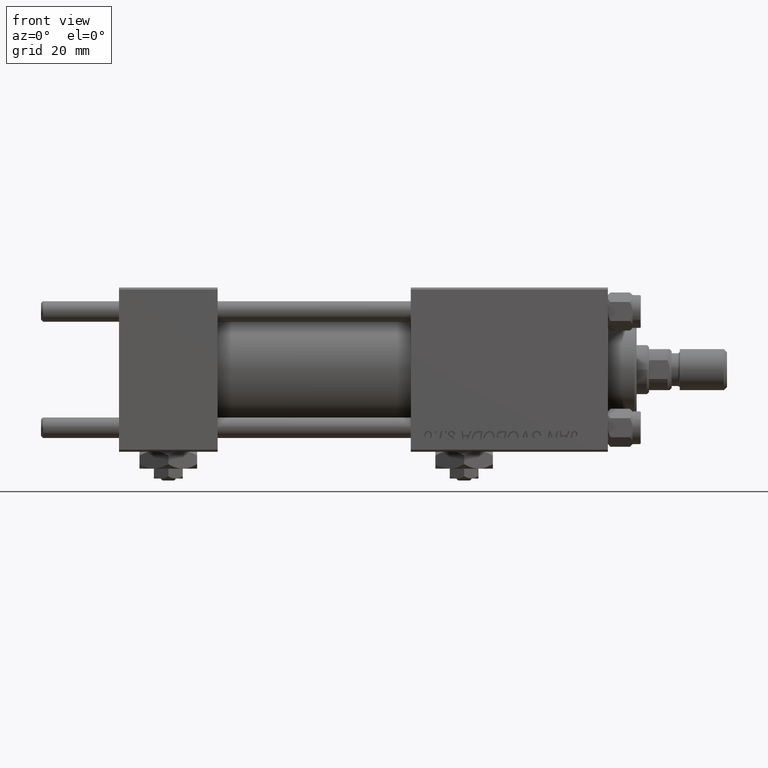
[diagram: clean part render]
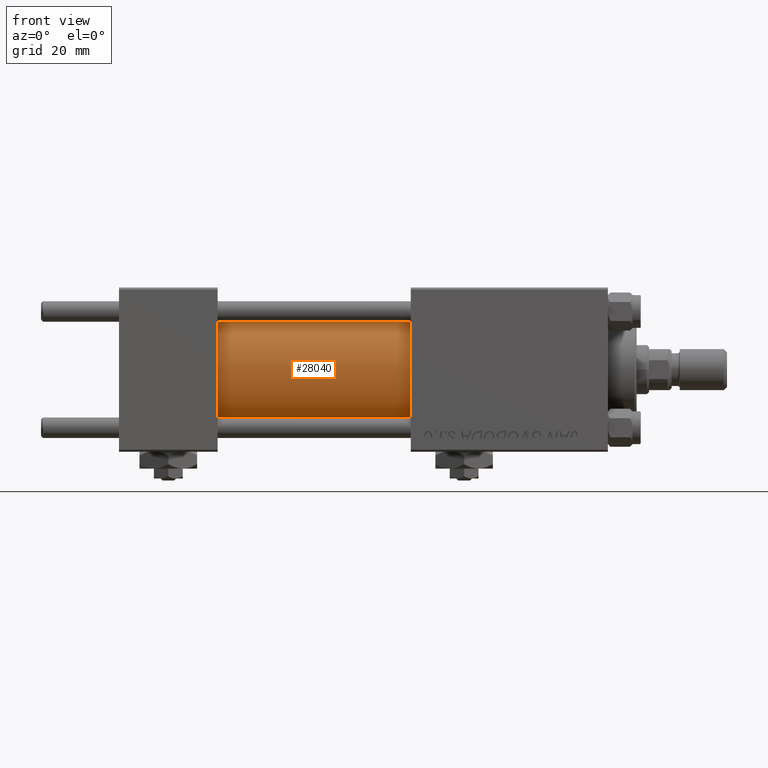
[diagram: same view with one face highlighted and labeled with its STEP entity id]
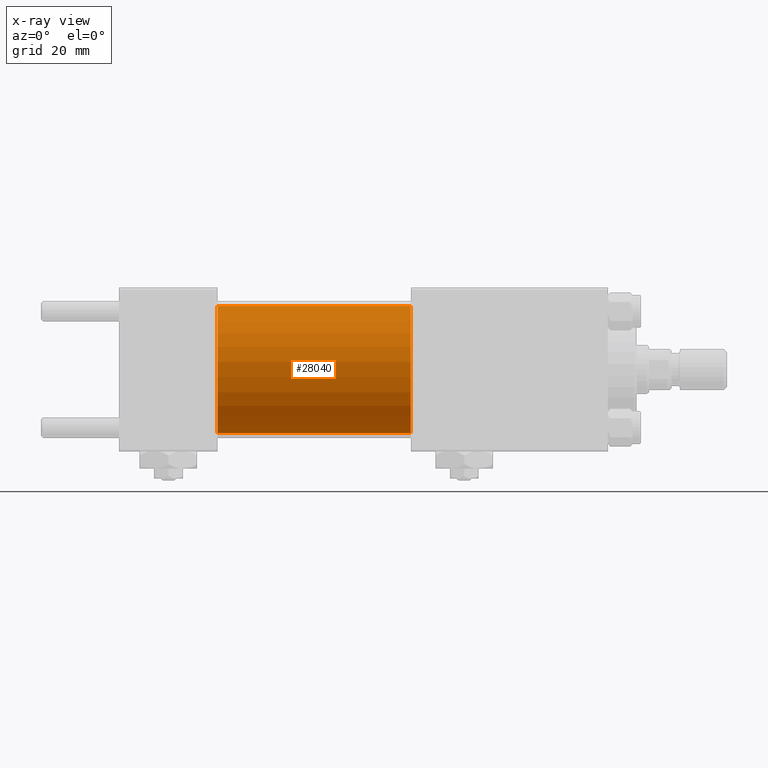
[diagram: x-ray of the same camera — body ghosted, the highlighted face saturated]
A machine part, front view. The second image highlights one B-rep face of the part: STEP entity #28040.
The next image is the same camera in x-ray: the body ghosted, the highlighted face saturated — about 0% of this face is hidden behind the body in this view.
In plain terms, the highlighted cylindrical surface (partial cylindrical patch) has radius 15.5 mm, axis along (-1, -0, -0).
Its self-contained STEP definition (entity closure, byte-faithful):
#3959 = VERTEX_POINT ( 'NONE', #33240 ) ;
#4667 = DIRECTION ( 'NONE',  ( 0.000000000000000000, 0.000000000000000000, -1.000000000000000000 ) ) ;
#7259 = CARTESIAN_POINT ( 'NONE',  ( 24.00000000000000000, 1.898202538678397557E-15, -15.50000000000000000 ) ) ;
#8919 = EDGE_LOOP ( 'NONE', ( #32512, #47701, #15351, #12631 ) ) ;
#9081 = EDGE_CURVE ( 'NONE', #3959, #51902, #46684, .T. ) ;
#9867 = DIRECTION ( 'NONE',  ( -1.000000000000000000, -0.000000000000000000, -0.000000000000000000 ) ) ;
#11284 = CARTESIAN_POINT ( 'NONE',  ( 71.00000000000001421, 0.000000000000000000, 0.000000000000000000 ) ) ;
#11408 = VERTEX_POINT ( 'NONE', #12252 ) ;
#12252 = CARTESIAN_POINT ( 'NONE',  ( 24.00000000000000000, 0.000000000000000000, 15.50000000000000000 ) ) ;
#12631 = ORIENTED_EDGE ( 'NONE', *, *, #51099, .T. ) ;
#14787 = VECTOR ( 'NONE', #9867, 1000.000000000000000 ) ;
#15351 = ORIENTED_EDGE ( 'NONE', *, *, #16118, .T. ) ;
#16056 = DIRECTION ( 'NONE',  ( 1.000000000000000000, 0.000000000000000000, 0.000000000000000000 ) ) ;
#16118 = EDGE_CURVE ( 'NONE', #3959, #11408, #42356, .T. ) ;
#18789 = DIRECTION ( 'NONE',  ( -1.000000000000000000, -0.000000000000000000, -0.000000000000000000 ) ) ;
#22588 = CARTESIAN_POINT ( 'NONE',  ( 24.00000000000000000, 0.000000000000000000, 0.000000000000000000 ) ) ;
#23925 = AXIS2_PLACEMENT_3D ( 'NONE', #37417, #16056, #4667 ) ;
#27274 = CIRCLE ( 'NONE', #44988, 15.50000000000000000 ) ;
#27518 = CARTESIAN_POINT ( 'NONE',  ( 71.00000000000001421, 1.898202538678397557E-15, -15.50000000000000000 ) ) ;
#28040 = ADVANCED_FACE ( 'NONE', ( #47993 ), #44026, .T. ) ;
#31072 = AXIS2_PLACEMENT_3D ( 'NONE', #11284, #43241, #47728 ) ;
#32512 = ORIENTED_EDGE ( 'NONE', *, *, #49763, .F. ) ;
#33006 = CARTESIAN_POINT ( 'NONE',  ( 71.00000000000001421, 1.898202538678397557E-15, -15.50000000000000000 ) ) ;
#33240 = CARTESIAN_POINT ( 'NONE',  ( 71.00000000000001421, 0.000000000000000000, 15.50000000000000000 ) ) ;
#37417 = CARTESIAN_POINT ( 'NONE',  ( 71.00000000000001421, 0.000000000000000000, 0.000000000000000000 ) ) ;
#38871 = LINE ( 'NONE', #27518, #40022 ) ;
#40022 = VECTOR ( 'NONE', #18789, 1000.000000000000000 ) ;
#42307 = VERTEX_POINT ( 'NONE', #7259 ) ;
#42356 = LINE ( 'NONE', #46065, #14787 ) ;
#42660 = DIRECTION ( 'NONE',  ( 0.000000000000000000, 0.000000000000000000, 1.000000000000000000 ) ) ;
#43241 = DIRECTION ( 'NONE',  ( -1.000000000000000000, -0.000000000000000000, -0.000000000000000000 ) ) ;
#44026 = CYLINDRICAL_SURFACE ( 'NONE', #31072, 15.50000000000000000 ) ;
#44988 = AXIS2_PLACEMENT_3D ( 'NONE', #22588, #47147, #42660 ) ;
#46065 = CARTESIAN_POINT ( 'NONE',  ( 71.00000000000001421, 0.000000000000000000, 15.50000000000000000 ) ) ;
#46684 = CIRCLE ( 'NONE', #23925, 15.50000000000000000 ) ;
#47147 = DIRECTION ( 'NONE',  ( 1.000000000000000000, 0.000000000000000000, 0.000000000000000000 ) ) ;
#47701 = ORIENTED_EDGE ( 'NONE', *, *, #9081, .F. ) ;
#47728 = DIRECTION ( 'NONE',  ( 0.000000000000000000, 0.000000000000000000, 1.000000000000000000 ) ) ;
#47993 = FACE_OUTER_BOUND ( 'NONE', #8919, .T. ) ;
#49763 = EDGE_CURVE ( 'NONE', #51902, #42307, #38871, .T. ) ;
#51099 = EDGE_CURVE ( 'NONE', #11408, #42307, #27274, .T. ) ;
#51902 = VERTEX_POINT ( 'NONE', #33006 ) ;